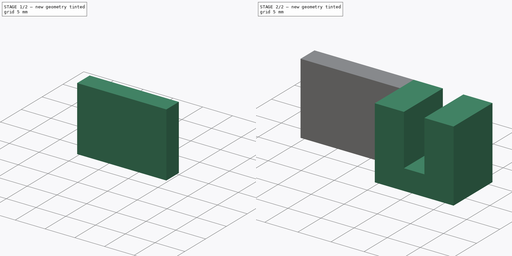
[diagram: build sequence overview — one tinted view per stage of 2, left to right]
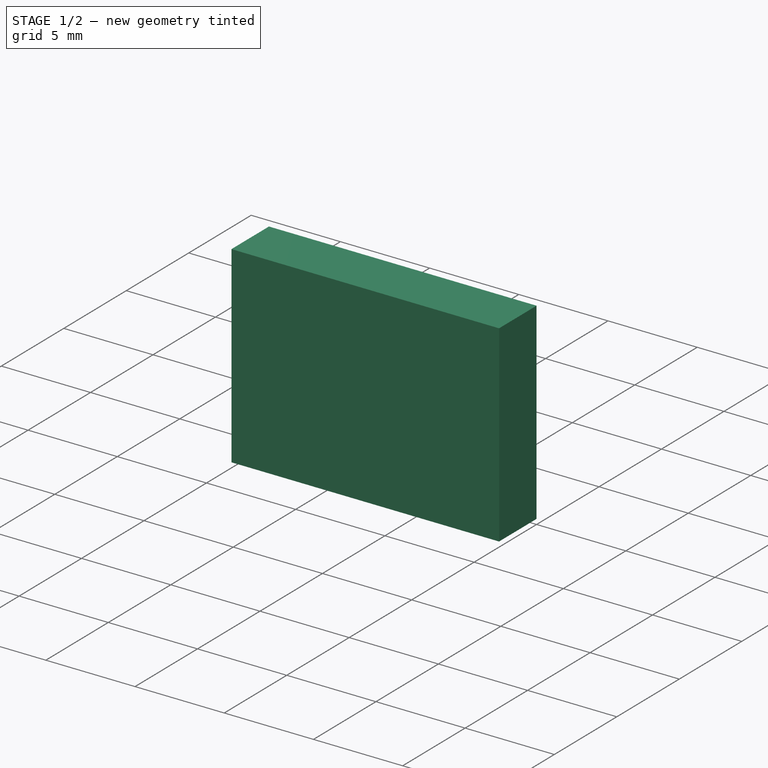
[diagram: stage 1 of 2 — iso view after this stage's code; geometry added in this stage tinted green]
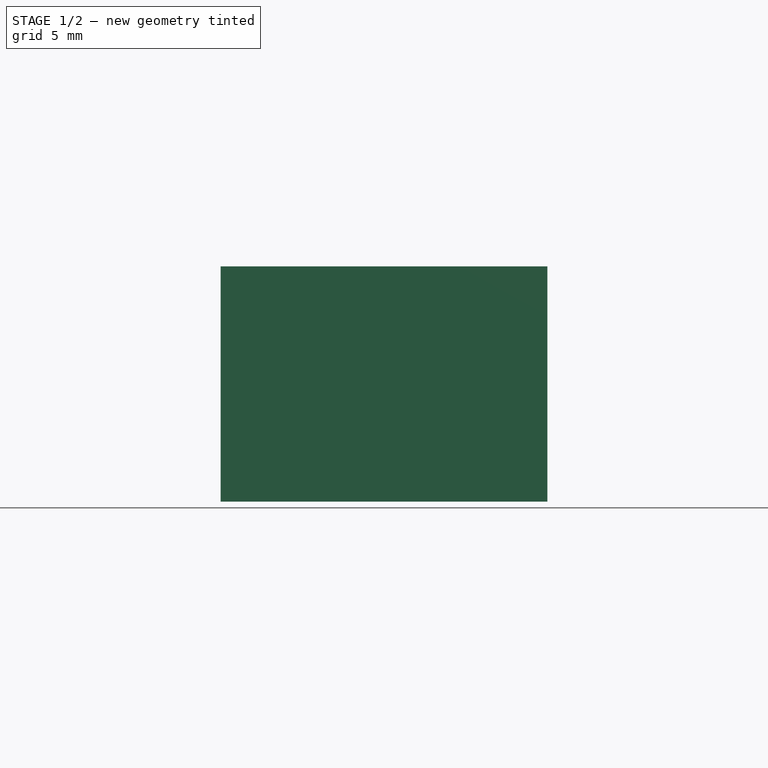
[diagram: stage 1 of 2 — front view after this stage's code; geometry added in this stage tinted green]
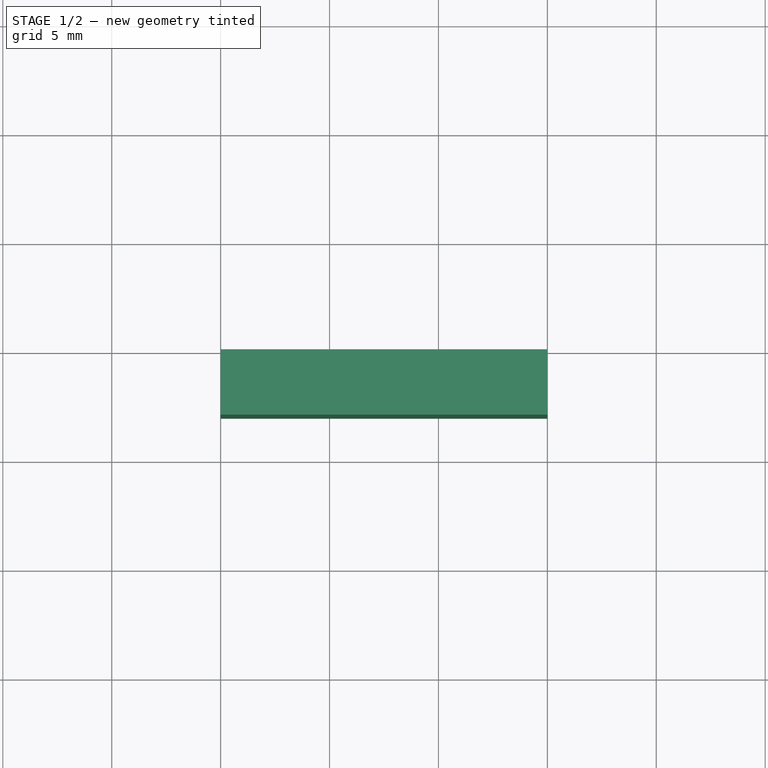
[diagram: stage 1 of 2 — top view after this stage's code; geometry added in this stage tinted green]
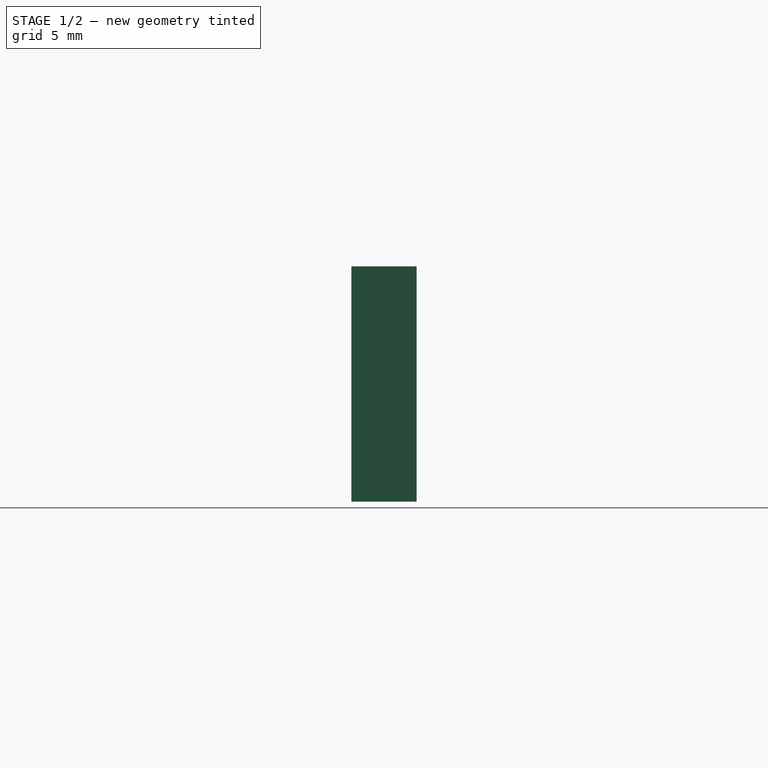
[diagram: stage 1 of 2 — right view after this stage's code; geometry added in this stage tinted green]
FCSTD DOCUMENT  (FreeCAD 0.18.4R)
Label: tcst1103_socket_vr
License: All rights reserved
LicenseURL: http://en.wikipedia.org/wiki/All_rights_reserved
objects: Sketcher::SketchObject×2, PartDesign::Pad×2, PartDesign::Body×1
note: 7 computed .brp shape members not serialized (recipe doc carries the construction recipe); baked Part::Feature solids carry a one-line shape summary decoded from their .brp

FEATURE [Sketcher::SketchObject] Sketch
  MapMode = 5
  Placement = pos=(0,0,0) rot=(1,0,0;1.5708rad)
  Support = -> [XZ_Plane]
  sketch-geometry (8):
    g0: LineSegment StartX=0 StartY=0 StartZ=0 EndX=0 EndY=10.8 EndZ=0
    g1: LineSegment StartX=0 StartY=10.8 StartZ=0 EndX=4.4 EndY=10.8 EndZ=0
    g2: LineSegment StartX=4.4 StartY=10.8 StartZ=0 EndX=4.4 EndY=3.1 EndZ=0
    g3: LineSegment StartX=4.4 StartY=3.1 StartZ=0 EndX=7.5 EndY=3.1 EndZ=0
    g4: LineSegment StartX=7.5 StartY=3.1 StartZ=0 EndX=7.5 EndY=10.8 EndZ=0
    g5: LineSegment StartX=7.5 StartY=10.8 StartZ=0 EndX=11.9 EndY=10.8 EndZ=0
    g6: LineSegment StartX=11.9 StartY=10.8 StartZ=0 EndX=11.9 EndY=0 EndZ=0
    g7: LineSegment StartX=0 StartY=0 StartZ=0 EndX=11.9 EndY=0 EndZ=0
  constraints (23):
    c: DistanceY(g0,g0) = 10.8
    c: Coincident(g-1,g0)
    c: Coincident(g7,g0)
    c: Coincident(g1,g0)
    c: Vertical(g0)
    c: Horizontal(g1)
    c: Coincident(g1,g2)
    c: DistanceY(g2,g2) = 7.7
    c: Coincident(g2,g3)
    c: Horizontal(g3)
    c: DistanceX(g3,g3) = 3.1
    c: Coincident(g4,g3)
    c: Vertical(g4)
    c: DistanceY(g4,g4) = 7.7
    c: Coincident(g5,g4)
    c: Horizontal(g5)
    c: Coincident(g6,g5)
    c: Vertical(g6)
    c: DistanceX(g5,g5) = 4.4
    c: DistanceX(g1,g1) = 4.4
    c: Vertical(g2)
    c: Coincident(g6,g7)
    c: Horizontal(g7)
FEATURE [Sketcher::SketchObject] Sketch001
  ExternalGeometry = -> [Sketch]
  MapMode = 5
  Placement = pos=(0,0,0) rot=(1,0,0;1.5708rad)
  Support = -> [XZ_Plane]
  sketch-geometry (4):
    g0: LineSegment StartX=0 StartY=10.8 StartZ=0 EndX=-15 EndY=10.8 EndZ=0
    g1: LineSegment StartX=-15 StartY=10.8 StartZ=0 EndX=-15 EndY=0 EndZ=0
    g2: LineSegment StartX=-15 StartY=0 StartZ=0 EndX=0 EndY=0 EndZ=0
    g3: LineSegment StartX=0 StartY=0 StartZ=0 EndX=0 EndY=10.8 EndZ=0
  constraints (11):
    c: Coincident(g0,g1)
    c: Coincident(g1,g2)
    c: Coincident(g2,g3)
    c: Coincident(g3,g0)
    c: Horizontal(g0)
    c: Horizontal(g2)
    c: Vertical(g1)
    c: Vertical(g3)
    c: Coincident(g-1,g2)
    c: Distance(g0) = 15
    c: Distance(g1) = 10.8
FEATURE [PartDesign::Pad] Pad
  Length = 3
  Length2 = 100
  Placement = pos=(0,0,0) rot=(1,0,0;1.5708rad)
  Profile = -> Sketch001
  Type = 0
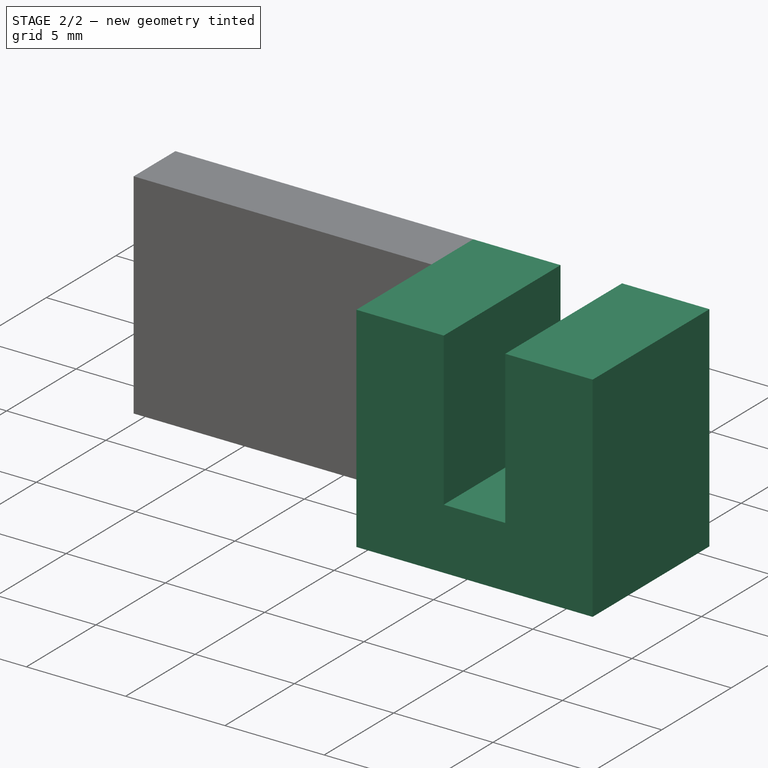
[diagram: stage 2 of 2 — iso view after this stage's code; geometry added in this stage tinted green]
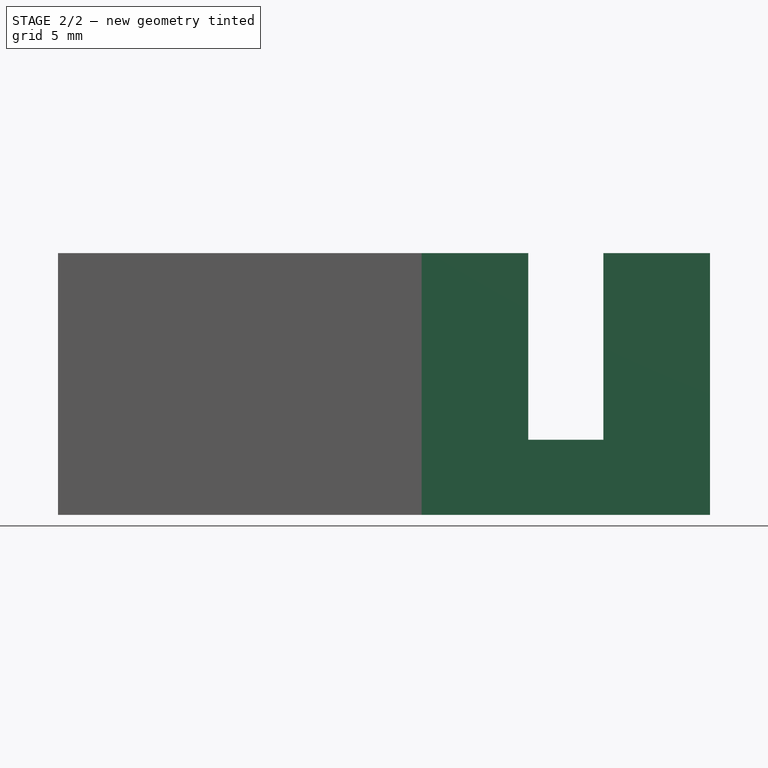
[diagram: stage 2 of 2 — front view after this stage's code; geometry added in this stage tinted green]
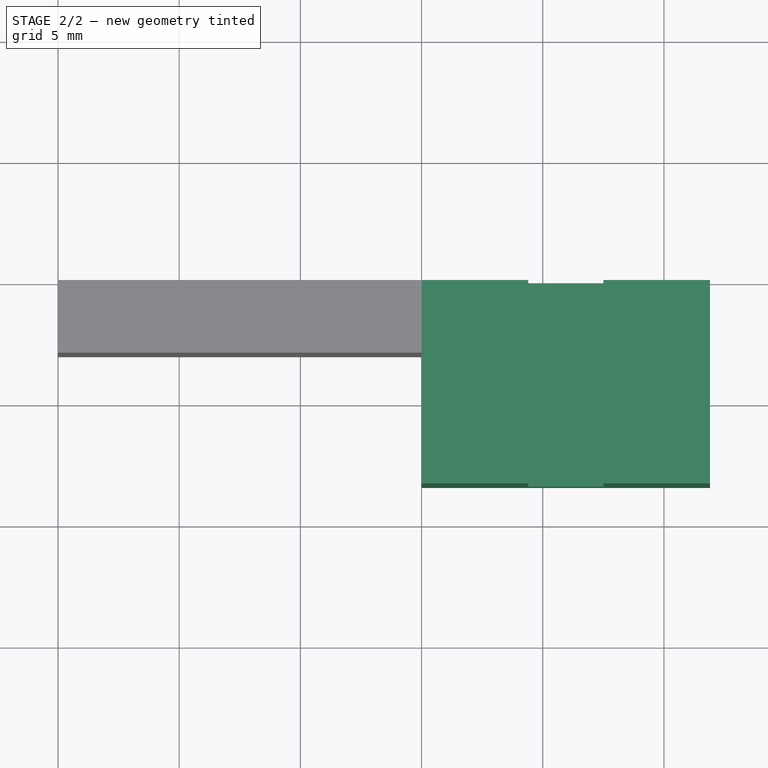
[diagram: stage 2 of 2 — top view after this stage's code; geometry added in this stage tinted green]
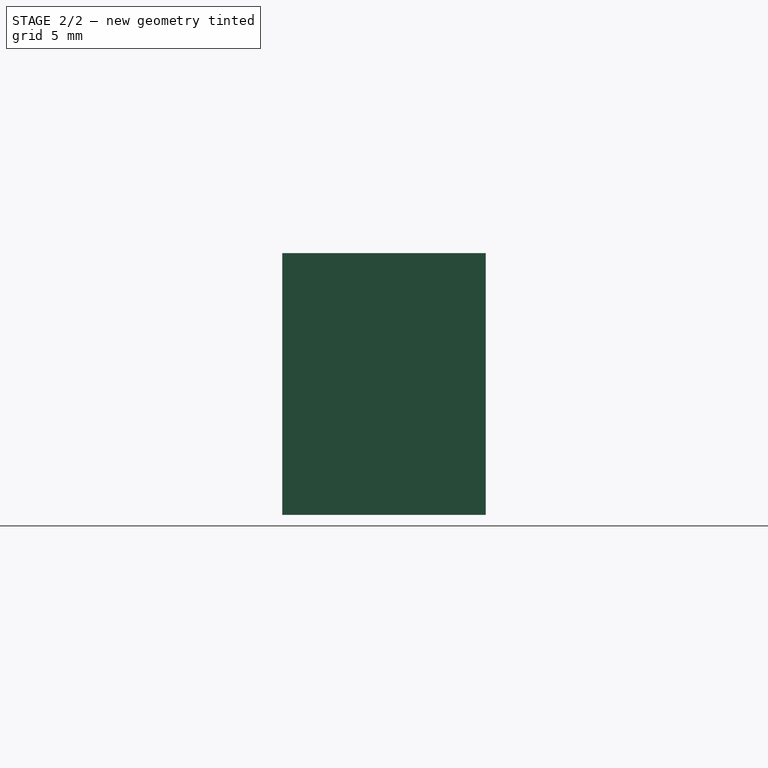
[diagram: stage 2 of 2 — right view after this stage's code; geometry added in this stage tinted green]
FEATURE [PartDesign::Pad] Pad001
  BaseFeature = -> Pad
  Length = 8.4
  Length2 = 100
  Placement = pos=(0,0,0) rot=(1,0,0;1.5708rad)
  Profile = -> Sketch
  Type = 0
FEATURE [PartDesign::Body] Body
  Group = -> [Sketch,Sketch001,Pad,Pad001]
  Origin = -> Origin
  Tip = -> Pad001
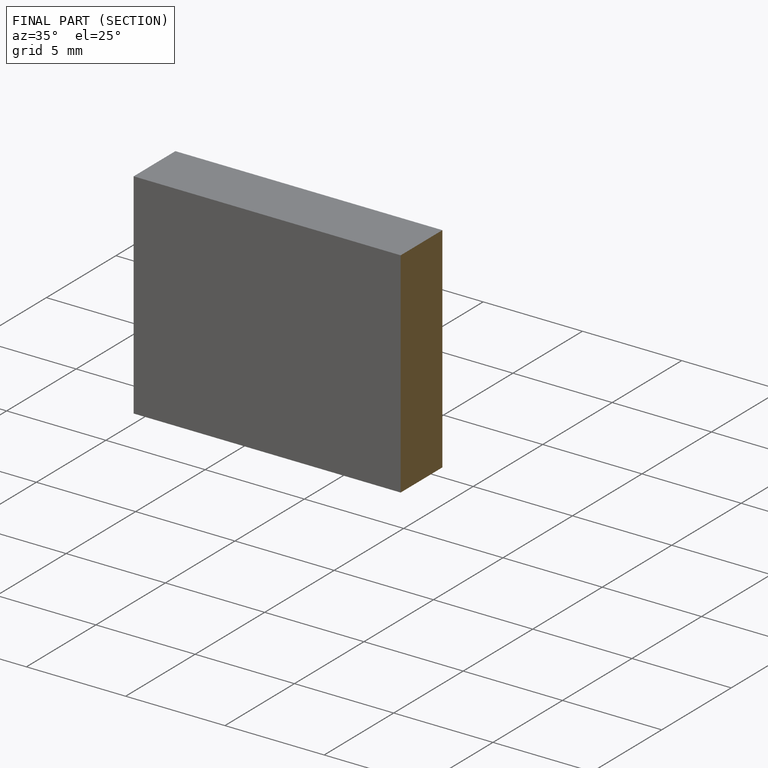
[diagram: finished part — half-section view (interior)]
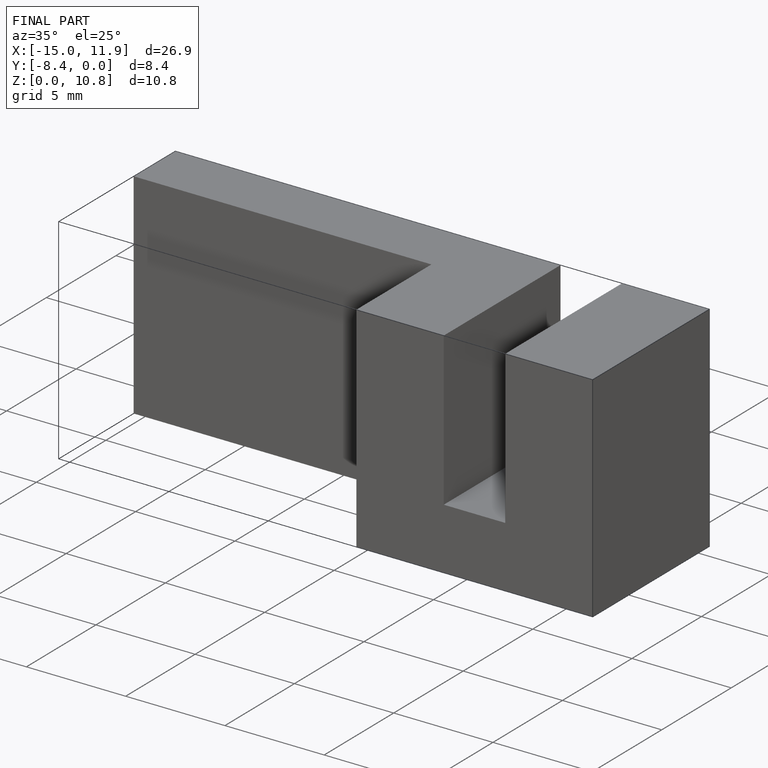
[diagram: finished part — iso view with bounding-box wireframe]
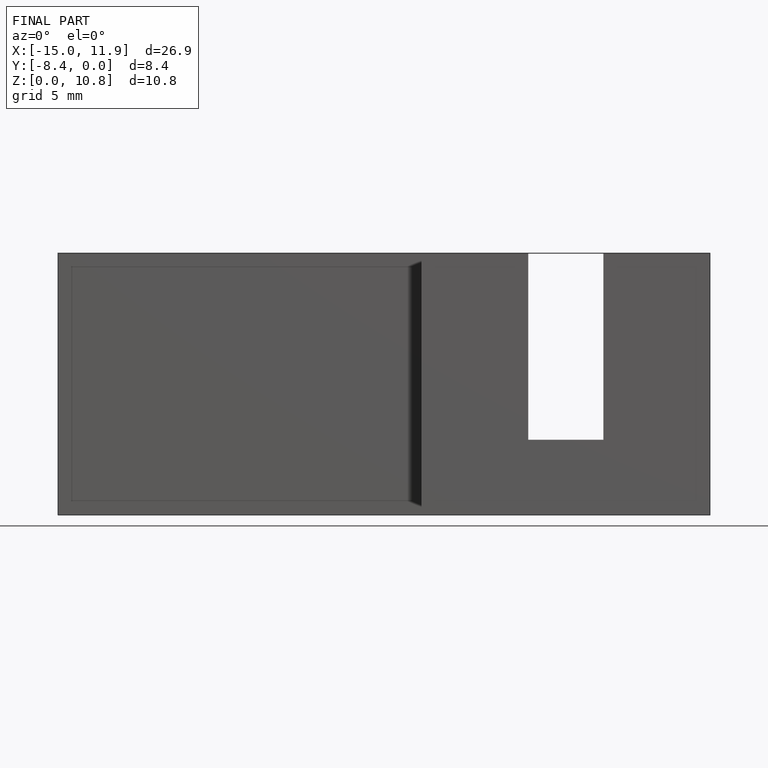
[diagram: finished part — front view with bounding-box wireframe]
